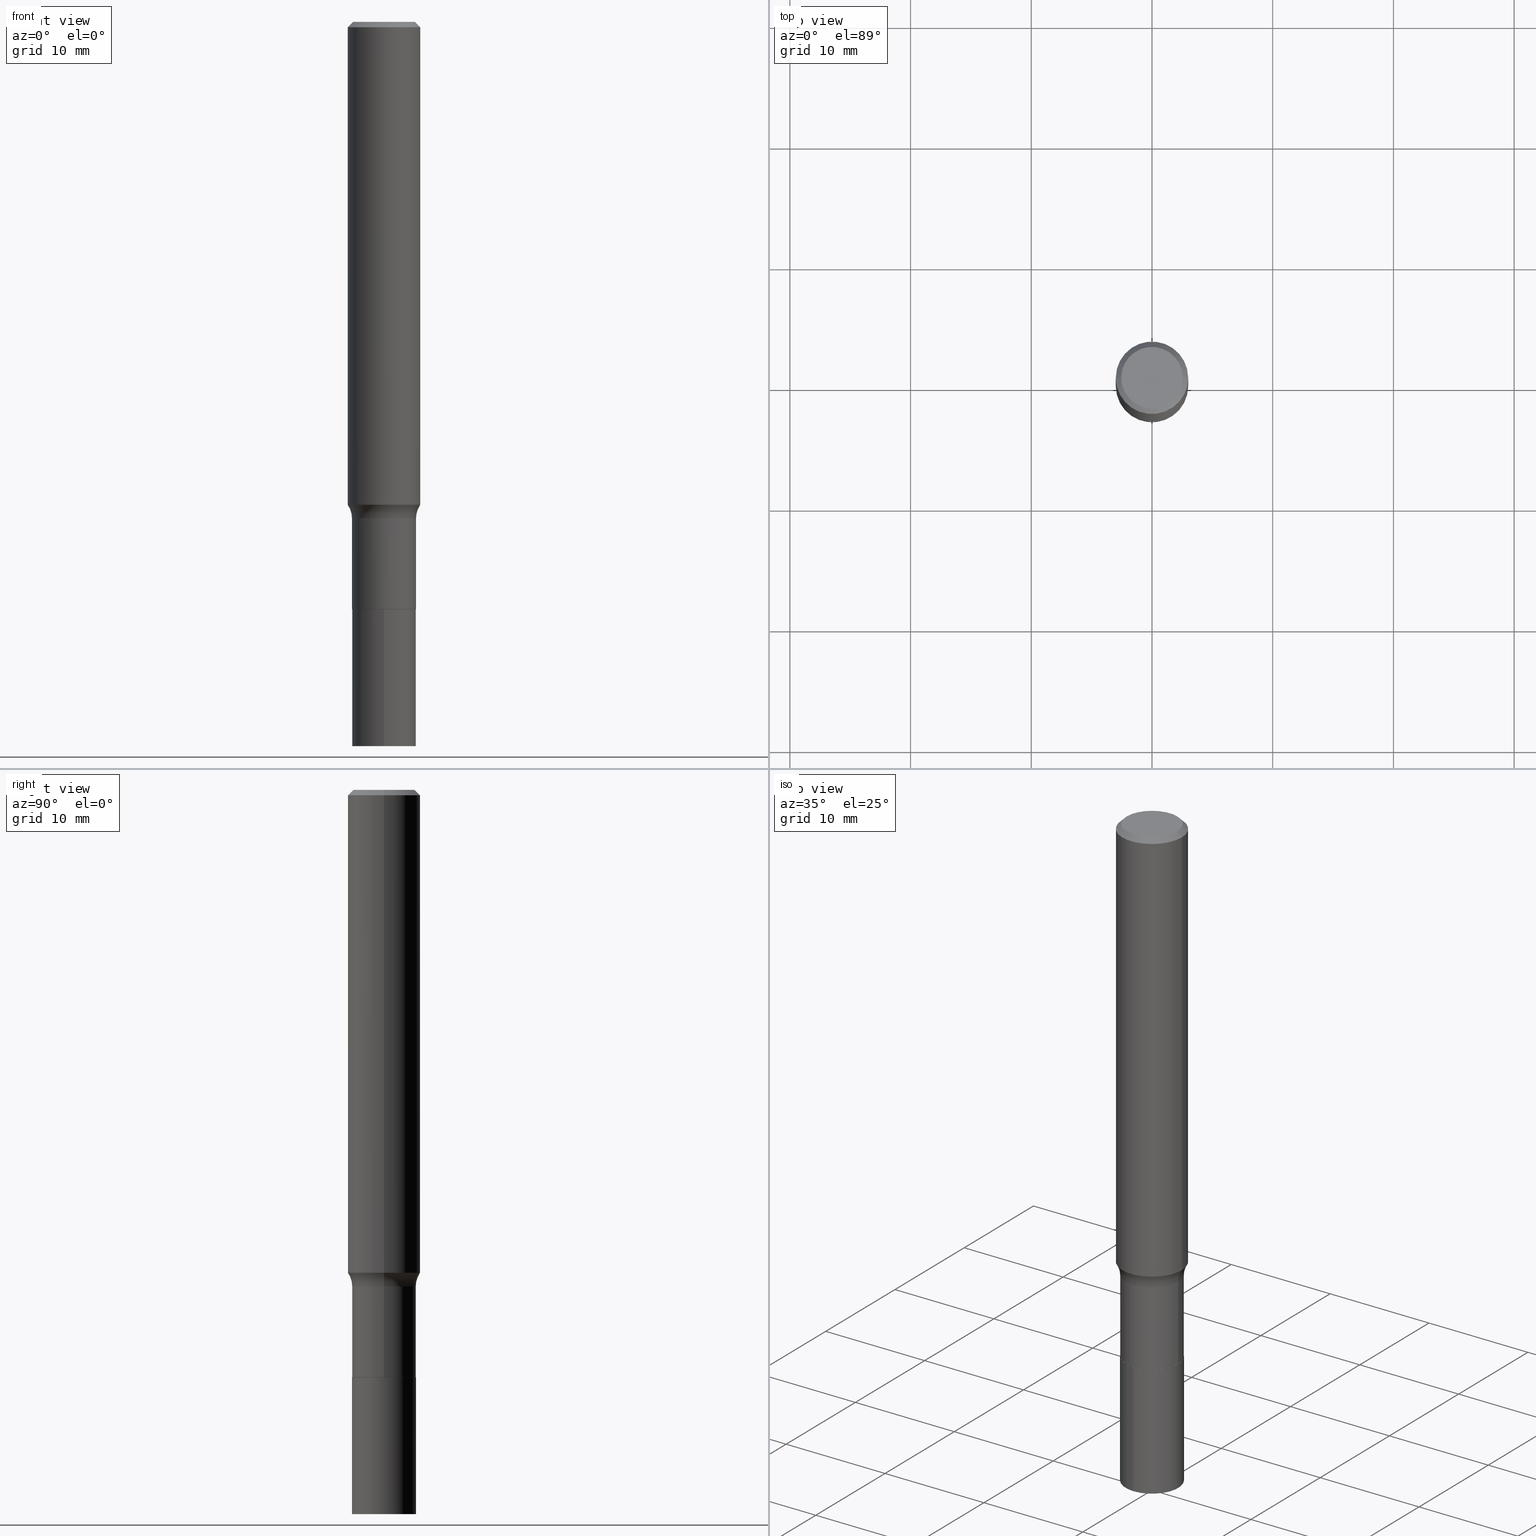
[diagram: canonical four-view strip — front | top / right | iso, engineering-drawing reading convention]
A machine part, canonical four-view strip (front | top / right | iso — engineering-drawing reading convention). The complete STEP part file that produces these views, byte-faithful:
ISO-10303-21;
HEADER;
FILE_DESCRIPTION (( 'STEP AP203' ),
    '1' );
FILE_NAME ('67098.STEP',
    '2024-04-19T15:50:59',
    ( '' ),
    ( '' ),
    'SwSTEP 2.0',
    'SolidWorks 2023',
    '' );
FILE_SCHEMA (( 'CONFIG_CONTROL_DESIGN' ));
ENDSEC;

DATA;
#1 = DIRECTION ( 'NONE',  ( -2.445468806185136877E-29, 3.491481338843145188E-15, 1.000000000000000000 ) ) ;
#2 = DIRECTION ( 'NONE',  ( -2.480896975213797344E-29, 3.440746184347948526E-15, 1.000000000000000000 ) ) ;
#3 = AXIS2_PLACEMENT_3D ( 'NONE', #84, #149, #396 ) ;
#4 = VECTOR ( 'NONE', #345, 39.37007874015748143 ) ;
#5 = EDGE_CURVE ( 'NONE', #106, #204, #9, .T. ) ;
#6 = DIRECTION ( 'NONE',  ( -0.7071067811866199593, 7.493145998870616062E-15, 0.7071067811864750752 ) ) ;
#7 = DIRECTION ( 'NONE',  ( -2.438088387897960049E-29, 3.491481338843145188E-15, 1.000000000000000000 ) ) ;
#8 = LINE ( 'NONE', #253, #95 ) ;
#9 = CIRCLE ( 'NONE', #270, 0.1043499999999999844 ) ;
#10 = VECTOR ( 'NONE', #283, 39.37007874015748143 ) ;
#11 = DIRECTION ( 'NONE',  ( -2.445468806185136597E-29, 3.491481338843145583E-15, 1.000000000000000000 ) ) ;
#12 = APPROVAL_DATE_TIME ( #221, #429 ) ;
#13 = ADVANCED_FACE ( 'NONE', ( #26 ), #230, .T. ) ;
#14 = CYLINDRICAL_SURFACE ( 'NONE', #45, 0.1043499999999999706 ) ;
#15 = ORIENTED_EDGE ( 'NONE', *, *, #136, .T. ) ;
#16 = CARTESIAN_POINT ( 'NONE',  ( -0.1038499999999999840, -5.949828683230260894E-15, -1.916200000000000125 ) ) ;
#17 = PERSON_AND_ORGANIZATION ( #305, #317 ) ;
#18 = ORIENTED_EDGE ( 'NONE', *, *, #57, .T. ) ;
#19 = DIRECTION ( 'NONE',  ( -1.000000000000000000, 6.982962677686265922E-15, -4.876176775795935793E-29 ) ) ;
#20 = TOROIDAL_SURFACE ( 'NONE', #131, 0.1843499999999999306, 0.08000000000000000167 ) ;
#21 = ORIENTED_EDGE ( 'NONE', *, *, #74, .T. ) ;
#22 = CARTESIAN_POINT ( 'NONE',  ( 4.686007326411958791E-29, -6.690376541491236123E-15, -1.916200000000000125 ) ) ;
#23 = PERSON_AND_ORGANIZATION ( #305, #317 ) ;
#24 = CC_DESIGN_PERSON_AND_ORGANIZATION_ASSIGNMENT ( #23, #258, ( #67 ) ) ;
#25 = DIRECTION ( 'NONE',  ( 1.000000000000000000, -6.982962677686259611E-15, 0.000000000000000000 ) ) ;
#26 = FACE_OUTER_BOUND ( 'NONE', #161, .T. ) ;
#27 = DIRECTION ( 'NONE',  ( -2.480896975213796784E-29, 3.440746184347948920E-15, 1.000000000000000000 ) ) ;
#28 = VECTOR ( 'NONE', #1, 39.37007874015748143 ) ;
#29 = ORIENTED_EDGE ( 'NONE', *, *, #70, .T. ) ;
#30 = EDGE_CURVE ( 'NONE', #204, #106, #82, .T. ) ;
#31 = CARTESIAN_POINT ( 'NONE',  ( -0.1043499999999999567, -5.430789366041250005E-15, -1.619900000000000340 ) ) ;
#32 = ORIENTED_EDGE ( 'NONE', *, *, #185, .F. ) ;
#33 =( NAMED_UNIT ( * ) SI_UNIT ( $, .STERADIAN. ) SOLID_ANGLE_UNIT ( ) );
#34 = DIRECTION ( 'NONE',  ( -2.445468806185136597E-29, 3.491481338843145583E-15, 1.000000000000000000 ) ) ;
#35 = ORIENTED_EDGE ( 'NONE', *, *, #50, .F. ) ;
#36 = CLOSED_SHELL ( 'NONE', ( #64, #398, #426, #379 ) ) ;
#37 = AXIS2_PLACEMENT_3D ( 'NONE', #145, #48, #394 ) ;
#38 = LOCAL_TIME ( 11, 50, 59.00000000000000000, #466 ) ;
#39 = DATE_TIME_ROLE ( 'creation_date' ) ;
#40 = CARTESIAN_POINT ( 'NONE',  ( -0.1180999999999999966, -1.941415052491705920E-15, -0.01771500000000010913 ) ) ;
#41 = ADVANCED_FACE ( 'NONE', ( #464 ), #271, .T. ) ;
#42 = FACE_OUTER_BOUND ( 'NONE', #302, .T. ) ;
#43 = EDGE_CURVE ( 'NONE', #259, #241, #143, .T. ) ;
#44 = CARTESIAN_POINT ( 'NONE',  ( 0.1043499999999999567, -6.384522776208574498E-15, -1.619900000000000340 ) ) ;
#45 = AXIS2_PLACEMENT_3D ( 'NONE', #93, #367, #225 ) ;
#46 = ADVANCED_FACE ( 'NONE', ( #392 ), #75, .T. ) ;
#47 = FACE_OUTER_BOUND ( 'NONE', #193, .T. ) ;
#48 = DIRECTION ( 'NONE',  ( -2.445468806185136597E-29, 3.491481338843145583E-15, 1.000000000000000000 ) ) ;
#49 = DIRECTION ( 'NONE',  ( -2.445468806185136597E-29, 3.491481338843145583E-15, 1.000000000000000000 ) ) ;
#50 = EDGE_CURVE ( 'NONE', #158, #416, #341, .T. ) ;
#51 = CONICAL_SURFACE ( 'NONE', #450, 0.1038499999999999840, 0.7853981633975507526 ) ;
#52 = DIRECTION ( 'NONE',  ( -2.445468806185136597E-29, 3.491481338843145583E-15, 1.000000000000000000 ) ) ;
#53 = EDGE_LOOP ( 'NONE', ( #462, #29, #449, #274 ) ) ;
#54 = CARTESIAN_POINT ( 'NONE',  ( 5.792487377357313463E-29, -8.224949339710422363E-15, -2.362200000000000522 ) ) ;
#55 = ORIENTED_EDGE ( 'NONE', *, *, #460, .F. ) ;
#56 = CARTESIAN_POINT ( 'NONE',  ( 4.686007326411958791E-29, -6.690376541491236123E-15, -1.916200000000000125 ) ) ;
#57 = EDGE_CURVE ( 'NONE', #461, #66, #181, .T. ) ;
#58 = VECTOR ( 'NONE', #322, 39.37007874015748143 ) ;
#59 = CARTESIAN_POINT ( 'NONE',  ( -7.286721554165148820E-16, -0.1043500000000066874, -1.916199999999999903 ) ) ;
#60 = EDGE_LOOP ( 'NONE', ( #135, #410, #280, #384 ) ) ;
#61 = CARTESIAN_POINT ( 'NONE',  ( 0.1003849999999999465, -7.803837484803597373E-16, -3.278471329826883745E-17 ) ) ;
#62 = VERTEX_POINT ( 'NONE', #327 ) ;
#63 = ORIENTED_EDGE ( 'NONE', *, *, #440, .F. ) ;
#64 = ADVANCED_FACE ( 'NONE', ( #209 ), #360, .T. ) ;
#65 = APPLICATION_PROTOCOL_DEFINITION ( 'international standard', 'config_control_design', 1994, #172 ) ;
#66 = VERTEX_POINT ( 'NONE', #44 ) ;
#67 = PRODUCT_DEFINITION_FORMATION_WITH_SPECIFIED_SOURCE ( 'ANY', '', #337, .NOT_KNOWN. ) ;
#68 = DIRECTION ( 'NONE',  ( 1.000000000000000000, -6.982962677686265922E-15, 4.883557194083112901E-29 ) ) ;
#69 = CARTESIAN_POINT ( 'NONE',  ( 4.684784592008867110E-29, -6.688630800821815408E-15, -1.915700000000000180 ) ) ;
#70 = EDGE_CURVE ( 'NONE', #226, #406, #214, .T. ) ;
#71 = DIRECTION ( 'NONE',  ( 1.000000000000000000, -6.982962677686266711E-15, 0.000000000000000000 ) ) ;
#72 = EDGE_LOOP ( 'NONE', ( #32, #338, #104, #239 ) ) ;
#73 = PERSON_AND_ORGANIZATION_ROLE ( 'creator' ) ;
#74 = EDGE_CURVE ( 'NONE', #416, #158, #151, .T. ) ;
#75 = CYLINDRICAL_SURFACE ( 'NONE', #111, 0.1043499999999999706 ) ;
#76 = CC_DESIGN_SECURITY_CLASSIFICATION ( #237, ( #67 ) ) ;
#77 = DIRECTION ( 'NONE',  ( -2.480896975213797344E-29, 3.440746184347948526E-15, 1.000000000000000000 ) ) ;
#78 = EDGE_CURVE ( 'NONE', #109, #62, #362, .T. ) ;
#79 = DIRECTION ( 'NONE',  ( 1.000000000000000000, -6.982962677686268288E-15, 0.000000000000000000 ) ) ;
#80 = CC_DESIGN_PERSON_AND_ORGANIZATION_ASSIGNMENT ( #254, #331, ( #237 ) ) ;
#81 = DIRECTION ( 'NONE',  ( -6.982962677686265922E-15, -1.000000000000000000, 2.617966452960483025E-15 ) ) ;
#82 = CIRCLE ( 'NONE', #377, 0.1043499999999999844 ) ;
#83 = CC_DESIGN_APPROVAL ( #422, ( #237 ) ) ;
#84 = CARTESIAN_POINT ( 'NONE',  ( 4.332147990156996744E-31, -6.185159191760670395E-17, -0.01771500000000010913 ) ) ;
#85 = DIRECTION ( 'NONE',  ( 1.000000000000000000, -6.982962677686268288E-15, 0.000000000000000000 ) ) ;
#86 = COORDINATED_UNIVERSAL_TIME_OFFSET ( 5, 0, .BEHIND. ) ;
#87 = CARTESIAN_POINT ( 'NONE',  ( 4.686007326411958791E-29, -6.690376541491236123E-15, -1.916200000000000125 ) ) ;
#88 = CONICAL_SURFACE ( 'NONE', #357, 0.1180999999999999966, 0.7853981633974476129 ) ;
#89 = DIRECTION ( 'NONE',  ( -2.445468806185136877E-29, 3.491481338843145188E-15, 1.000000000000000000 ) ) ;
#90 = DIRECTION ( 'NONE',  ( -6.982962677686265922E-15, -1.000000000000000000, 2.617966452960482631E-15 ) ) ;
#91 = ORIENTED_EDGE ( 'NONE', *, *, #395, .F. ) ;
#92 = ADVANCED_FACE ( 'NONE', ( #363 ), #51, .T. ) ;
#93 = CARTESIAN_POINT ( 'NONE',  ( 0.000000000000000000, 0.000000000000000000, 0.000000000000000000 ) ) ;
#94 = ORIENTED_EDGE ( 'NONE', *, *, #210, .T. ) ;
#95 = VECTOR ( 'NONE', #6, 39.37007874015748143 ) ;
#96 = DIRECTION ( 'NONE',  ( -6.982962677686266711E-15, -1.000000000000000000, 3.491481338843145583E-15 ) ) ;
#97 = CC_DESIGN_APPROVAL ( #284, ( #368 ) ) ;
#98 = PERSON_AND_ORGANIZATION ( #305, #317 ) ;
#99 = EDGE_CURVE ( 'NONE', #318, #461, #224, .T. ) ;
#100 = ORIENTED_EDGE ( 'NONE', *, *, #374, .F. ) ;
#101 = MECHANICAL_CONTEXT ( 'NONE', #417, 'mechanical' ) ;
#102 = ORIENTED_EDGE ( 'NONE', *, *, #78, .T. ) ;
#103 = AXIS2_PLACEMENT_3D ( 'NONE', #289, #77, #211 ) ;
#104 = ORIENTED_EDGE ( 'NONE', *, *, #213, .T. ) ;
#105 = CARTESIAN_POINT ( 'NONE',  ( 4.686007326411958791E-29, -6.690376541491236123E-15, -1.916200000000000125 ) ) ;
#106 = VERTEX_POINT ( 'NONE', #444 ) ;
#107 = EDGE_CURVE ( 'NONE', #259, #226, #385, .T. ) ;
#108 = CALENDAR_DATE ( 2024, 19, 4 ) ;
#109 = VERTEX_POINT ( 'NONE', #40 ) ;
#110 = DIRECTION ( 'NONE',  ( 1.000000000000000000, -6.982962677686268288E-15, 0.000000000000000000 ) ) ;
#111 = AXIS2_PLACEMENT_3D ( 'NONE', #165, #219, #183 ) ;
#112 = AXIS2_PLACEMENT_3D ( 'NONE', #87, #375, #162 ) ;
#113 = CARTESIAN_POINT ( 'NONE',  ( 0.1180999999999999966, -8.720764054544245267E-16, -0.01771500000000010913 ) ) ;
#114 = ADVANCED_FACE ( 'NONE', ( #42 ), #179, .F. ) ;
#115 = LINE ( 'NONE', #397, #28 ) ;
#116 = CARTESIAN_POINT ( 'NONE',  ( -0.1843499999999999306, -4.345965087418268874E-15, -1.619900000000000340 ) ) ;
#117 = DIRECTION ( 'NONE',  ( -1.000000000000000000, 7.105427357600997914E-15, 0.000000000000000000 ) ) ;
#118 = CC_DESIGN_DATE_AND_TIME_ASSIGNMENT ( #207, #39, ( #368 ) ) ;
#119 = CARTESIAN_POINT ( 'NONE',  ( 4.332147990156996744E-31, -6.185159191760670395E-17, -0.01771500000000010913 ) ) ;
#120 = DATE_TIME_ROLE ( 'classification_date' ) ;
#121 = ORIENTED_EDGE ( 'NONE', *, *, #50, .T. ) ;
#122 = PLANE ( 'NONE',  #140 ) ;
#123 = AXIS2_PLACEMENT_3D ( 'NONE', #361, #184, #148 ) ;
#124 = AXIS2_PLACEMENT_3D ( 'NONE', #105, #133, #279 ) ;
#125 = DIRECTION ( 'NONE',  ( 1.000000000000000000, -6.982962677686268288E-15, 0.000000000000000000 ) ) ;
#126 = FACE_OUTER_BOUND ( 'NONE', #127, .T. ) ;
#127 = EDGE_LOOP ( 'NONE', ( #206, #419 ) ) ;
#128 = CARTESIAN_POINT ( 'NONE',  ( 4.686007326411958791E-29, -6.690376541491236123E-15, -1.916200000000000125 ) ) ;
#129 = ORIENTED_EDGE ( 'NONE', *, *, #213, .F. ) ;
#130 =( NAMED_UNIT ( * ) PLANE_ANGLE_UNIT ( ) SI_UNIT ( $, .RADIAN. ) );
#131 = AXIS2_PLACEMENT_3D ( 'NONE', #174, #352, #68 ) ;
#132 = EDGE_LOOP ( 'NONE', ( #382, #35, #94, #102 ) ) ;
#133 = DIRECTION ( 'NONE',  ( -2.480896975213797344E-29, 3.440746184347948526E-15, 1.000000000000000000 ) ) ;
#134 = ORIENTED_EDGE ( 'NONE', *, *, #309, .F. ) ;
#135 = ORIENTED_EDGE ( 'NONE', *, *, #99, .F. ) ;
#136 = EDGE_CURVE ( 'NONE', #416, #62, #288, .T. ) ;
#137 = FACE_OUTER_BOUND ( 'NONE', #351, .T. ) ;
#138 = AXIS2_PLACEMENT_3D ( 'NONE', #439, #7, #178 ) ;
#139 = ORIENTED_EDGE ( 'NONE', *, *, #185, .T. ) ;
#140 = AXIS2_PLACEMENT_3D ( 'NONE', #418, #27, #197 ) ;
#141 = EDGE_CURVE ( 'NONE', #344, #204, #8, .T. ) ;
#142 = DATE_AND_TIME ( #314, #38 ) ;
#143 = LINE ( 'NONE', #243, #10 ) ;
#144 = CARTESIAN_POINT ( 'NONE',  ( 3.851751593051242505E-29, -5.499280454931165191E-15, -1.575056522213369670 ) ) ;
#145 = CARTESIAN_POINT ( 'NONE',  ( 3.961414919139303534E-29, -5.655850620792012876E-15, -1.619900000000000340 ) ) ;
#146 = AXIS2_PLACEMENT_3D ( 'NONE', #467, #34, #171 ) ;
#147 = DIRECTION ( 'NONE',  ( -2.445468806185136597E-29, 3.491481338843145583E-15, 1.000000000000000000 ) ) ;
#148 = DIRECTION ( 'NONE',  ( 1.000000000000000000, -6.982962677686266711E-15, 4.875668750515089058E-29 ) ) ;
#149 = DIRECTION ( 'NONE',  ( -2.445468806185136597E-29, 3.491481338843145583E-15, 1.000000000000000000 ) ) ;
#150 = CLOSED_SHELL ( 'NONE', ( #92, #13, #189, #455, #46, #218, #287, #263, #365, #248, #114, #41 ) ) ;
#151 = CIRCLE ( 'NONE', #123, 0.1003849999999999465 ) ;
#152 = CIRCLE ( 'NONE', #400, 0.1180999999999999966 ) ;
#153 = FACE_OUTER_BOUND ( 'NONE', #72, .T. ) ;
#154 = CARTESIAN_POINT ( 'NONE',  ( 0.1181000000000002326, -6.323968347165915031E-15, -1.575056522213369670 ) ) ;
#155 = ORIENTED_EDGE ( 'NONE', *, *, #30, .F. ) ;
#156 = CC_DESIGN_PERSON_AND_ORGANIZATION_ASSIGNMENT ( #98, #169, ( #337 ) ) ;
#157 = CARTESIAN_POINT ( 'NONE',  ( 0.1038499999999999840, -7.415557215568955527E-15, -1.916200000000000125 ) ) ;
#158 = VERTEX_POINT ( 'NONE', #180 ) ;
#159 = CIRCLE ( 'NONE', #251, 0.1043499999999999844 ) ;
#160 = CARTESIAN_POINT ( 'NONE',  ( 3.851751593051242505E-29, -5.499280454931165191E-15, -1.575056522213369670 ) ) ;
#161 = EDGE_LOOP ( 'NONE', ( #276, #15, #262, #298 ) ) ;
#162 = DIRECTION ( 'NONE',  ( 6.982962677686265922E-15, 1.000000000000000000, -3.440746184347948920E-15 ) ) ;
#163 = PERSON_AND_ORGANIZATION ( #305, #317 ) ;
#164 = DIRECTION ( 'NONE',  ( -2.445468806185136877E-29, 3.491481338843145188E-15, 1.000000000000000000 ) ) ;
#165 = CARTESIAN_POINT ( 'NONE',  ( 0.000000000000000000, 0.000000000000000000, 0.000000000000000000 ) ) ;
#166 =( CONVERSION_BASED_UNIT ( 'INCH', #354 ) LENGTH_UNIT ( ) NAMED_UNIT ( #319 ) );
#167 = DIRECTION ( 'NONE',  ( 1.000000000000000000, -6.982962677686263555E-15, 0.000000000000000000 ) ) ;
#168 = EDGE_CURVE ( 'NONE', #66, #461, #330, .T. ) ;
#169 = PERSON_AND_ORGANIZATION_ROLE ( 'design_owner' ) ;
#170 = DIRECTION ( 'NONE',  ( 1.000000000000000000, -6.982962677686263555E-15, 0.000000000000000000 ) ) ;
#171 = DIRECTION ( 'NONE',  ( 1.000000000000000000, -6.982962677686268288E-15, 0.000000000000000000 ) ) ;
#172 = APPLICATION_CONTEXT ( 'configuration controlled 3d designs of mechanical parts and assemblies' ) ;
#173 = DESIGN_CONTEXT ( 'detailed design', #172, 'design' ) ;
#174 = CARTESIAN_POINT ( 'NONE',  ( 3.961414919139303534E-29, -5.655850620792012876E-15, -1.619900000000000340 ) ) ;
#175 = CIRCLE ( 'NONE', #399, 0.1181000000000002048 ) ;
#176 = ORIENTED_EDGE ( 'NONE', *, *, #141, .T. ) ;
#177 = APPROVAL_DATE_TIME ( #142, #284 ) ;
#178 = DIRECTION ( 'NONE',  ( 1.000000000000000000, -6.982962677686265922E-15, 4.876176775795935793E-29 ) ) ;
#179 = PLANE ( 'NONE',  #138 ) ;
#180 = CARTESIAN_POINT ( 'NONE',  ( -0.1003849999999999465, 7.319105043583383731E-16, -3.278471329827902485E-17 ) ) ;
#181 = CIRCLE ( 'NONE', #37, 0.1043499999999999567 ) ;
#182 = AXIS2_PLACEMENT_3D ( 'NONE', #56, #297, #188 ) ;
#183 = DIRECTION ( 'NONE',  ( 1.000000000000000000, -6.982962677686266711E-15, 4.876176775795936353E-29 ) ) ;
#184 = DIRECTION ( 'NONE',  ( -2.445468806185136597E-29, 3.491481338843145583E-15, 1.000000000000000000 ) ) ;
#185 = EDGE_CURVE ( 'NONE', #204, #461, #115, .T. ) ;
#186 = CARTESIAN_POINT ( 'NONE',  ( 0.000000000000000000, 0.000000000000000000, 0.000000000000000000 ) ) ;
#187 = AXIS2_PLACEMENT_3D ( 'NONE', #290, #250, #401 ) ;
#188 = DIRECTION ( 'NONE',  ( -6.982962677686265922E-15, -1.000000000000000000, 2.617966452960482631E-15 ) ) ;
#189 = ADVANCED_FACE ( 'NONE', ( #47 ), #292, .T. ) ;
#190 = DIRECTION ( 'NONE',  ( 0.7071067811866199593, -2.468850131083015945E-15, 0.7071067811864750752 ) ) ;
#191 = ORIENTED_EDGE ( 'NONE', *, *, #78, .F. ) ;
#192 = LINE ( 'NONE', #222, #407 ) ;
#193 = EDGE_LOOP ( 'NONE', ( #234, #347, #355, #55 ) ) ;
#194 = FACE_OUTER_BOUND ( 'NONE', #425, .T. ) ;
#195 = EDGE_CURVE ( 'NONE', #380, #318, #175, .T. ) ;
#196 = EDGE_LOOP ( 'NONE', ( #423, #176, #433, #340 ) ) ;
#197 = DIRECTION ( 'NONE',  ( -6.982962677686265922E-15, -1.000000000000000000, 3.440746184347948920E-15 ) ) ;
#198 = ORIENTED_EDGE ( 'NONE', *, *, #107, .F. ) ;
#199 = EDGE_CURVE ( 'NONE', #241, #406, #159, .T. ) ;
#200 = DIRECTION ( 'NONE',  ( -2.445468806185136597E-29, 3.491481338843145583E-15, 1.000000000000000000 ) ) ;
#201 = VERTEX_POINT ( 'NONE', #157 ) ;
#202 = CIRCLE ( 'NONE', #182, 0.1043499999999999844 ) ;
#203 = DIRECTION ( 'NONE',  ( 1.000000000000000000, 0.000000000000000000, 0.000000000000000000 ) ) ;
#204 = VERTEX_POINT ( 'NONE', #414 ) ;
#205 = ORIENTED_EDGE ( 'NONE', *, *, #334, .T. ) ;
#206 = ORIENTED_EDGE ( 'NONE', *, *, #199, .T. ) ;
#207 = DATE_AND_TIME ( #108, #260 ) ;
#208 = AXIS2_PLACEMENT_3D ( 'NONE', #160, #11, #125 ) ;
#209 = FACE_OUTER_BOUND ( 'NONE', #53, .T. ) ;
#210 = EDGE_CURVE ( 'NONE', #158, #109, #192, .T. ) ;
#211 = DIRECTION ( 'NONE',  ( -6.982962677686265922E-15, -1.000000000000000000, 2.617966452960483025E-15 ) ) ;
#212 = DIRECTION ( 'NONE',  ( 7.105427357601001859E-15, 1.000000000000000000, -3.491481338843145583E-15 ) ) ;
#213 = EDGE_CURVE ( 'NONE', #106, #66, #329, .T. ) ;
#214 = LINE ( 'NONE', #359, #58 ) ;
#215 = VECTOR ( 'NONE', #89, 39.37007874015748143 ) ;
#216 = APPROVAL_PERSON_ORGANIZATION ( #350, #284, #312 ) ;
#217 = UNCERTAINTY_MEASURE_WITH_UNIT (LENGTH_MEASURE( 1.000000000000000082E-05 ), #166, 'distance_accuracy_value', 'NONE');
#218 = ADVANCED_FACE ( 'NONE', ( #153 ), #14, .T. ) ;
#219 = DIRECTION ( 'NONE',  ( -2.445468806185136597E-29, 3.491481338843145583E-15, 1.000000000000000000 ) ) ;
#220 = CARTESIAN_POINT ( 'NONE',  ( -0.1181000000000002326, -4.660129483998485416E-15, -1.575056522213369670 ) ) ;
#221 = DATE_AND_TIME ( #391, #294 ) ;
#222 = CARTESIAN_POINT ( 'NONE',  ( -0.1180999999999999966, 7.628363003171413738E-16, -0.01771500000000010913 ) ) ;
#223 = APPROVAL_DATE_TIME ( #304, #422 ) ;
#224 = CIRCLE ( 'NONE', #348, 0.08000000000000000167 ) ;
#225 = DIRECTION ( 'NONE',  ( 1.000000000000000000, -6.982962677686266711E-15, 4.876176775795936353E-29 ) ) ;
#226 = VERTEX_POINT ( 'NONE', #335 ) ;
#227 = DIRECTION ( 'NONE',  ( -1.000000000000000000, 6.982962677686266711E-15, 0.000000000000000000 ) ) ;
#228 = DIRECTION ( 'NONE',  ( 1.000000000000000000, -6.982962677686265922E-15, 4.883557194083112901E-29 ) ) ;
#229 = ORIENTED_EDGE ( 'NONE', *, *, #374, .T. ) ;
#230 = CONICAL_SURFACE ( 'NONE', #324, 0.1180999999999999966, 0.7853981633974476129 ) ;
#231 = ORIENTED_EDGE ( 'NONE', *, *, #43, .T. ) ;
#232 = APPROVAL_STATUS ( 'not_yet_approved' ) ;
#233 = ORIENTED_EDGE ( 'NONE', *, *, #99, .T. ) ;
#234 = ORIENTED_EDGE ( 'NONE', *, *, #195, .T. ) ;
#235 = CC_DESIGN_PERSON_AND_ORGANIZATION_ASSIGNMENT ( #163, #265, ( #67 ) ) ;
#236 = AXIS2_PLACEMENT_3D ( 'NONE', #321, #147, #403 ) ;
#237 = SECURITY_CLASSIFICATION ( '', '', #409 ) ;
#238 = CYLINDRICAL_SURFACE ( 'NONE', #124, 0.1043499999999999706 ) ;
#239 = ORIENTED_EDGE ( 'NONE', *, *, #57, .F. ) ;
#240 = LINE ( 'NONE', #378, #436 ) ;
#241 = VERTEX_POINT ( 'NONE', #59 ) ;
#242 = PERSON_AND_ORGANIZATION ( #305, #317 ) ;
#243 = CARTESIAN_POINT ( 'NONE',  ( -7.286721554165147834E-16, -0.1043500000000066735, -1.916199999999999903 ) ) ;
#244 = CIRCLE ( 'NONE', #308, 0.1043499999999999706 ) ;
#245 = CARTESIAN_POINT ( 'NONE',  ( 4.686007326411958791E-29, -6.690376541491236123E-15, -1.916200000000000125 ) ) ;
#246 = CIRCLE ( 'NONE', #310, 0.08000000000000000167 ) ;
#247 = CARTESIAN_POINT ( 'NONE',  ( 8.017399369065212404E-46, -1.144672146802464325E-31, -3.278471329827401435E-17 ) ) ;
#248 = ADVANCED_FACE ( 'NONE', ( #194 ), #370, .F. ) ;
#249 = DIRECTION ( 'NONE',  ( -2.445468806185136597E-29, 3.491481338843145583E-15, 1.000000000000000000 ) ) ;
#250 = DIRECTION ( 'NONE',  ( -2.445468806185136597E-29, 3.491481338843145583E-15, 1.000000000000000000 ) ) ;
#251 = AXIS2_PLACEMENT_3D ( 'NONE', #245, #2, #90 ) ;
#252 = AXIS2_PLACEMENT_3D ( 'NONE', #128, #268, #85 ) ;
#253 = CARTESIAN_POINT ( 'NONE',  ( -0.1038499999999999840, -5.952477910404372095E-15, -1.916200000000000125 ) ) ;
#254 = PERSON_AND_ORGANIZATION ( #305, #317 ) ;
#255 = CYLINDRICAL_SURFACE ( 'NONE', #356, 0.1181000000000001077 ) ;
#256 = ORIENTED_EDGE ( 'NONE', *, *, #460, .T. ) ;
#257 = PLANE ( 'NONE',  #112 ) ;
#258 = PERSON_AND_ORGANIZATION_ROLE ( 'design_supplier' ) ;
#259 = VERTEX_POINT ( 'NONE', #372 ) ;
#260 = LOCAL_TIME ( 11, 50, 59.00000000000000000, #432 ) ;
#261 = FACE_OUTER_BOUND ( 'NONE', #132, .T. ) ;
#262 = ORIENTED_EDGE ( 'NONE', *, *, #402, .T. ) ;
#263 = ADVANCED_FACE ( 'NONE', ( #303 ), #255, .T. ) ;
#264 = CARTESIAN_POINT ( 'NONE',  ( 4.008699684532606202E-46, -5.723360734012321624E-32, -1.639235664913700718E-17 ) ) ;
#265 = PERSON_AND_ORGANIZATION_ROLE ( 'creator' ) ;
#266 = EDGE_LOOP ( 'NONE', ( #198, #431 ) ) ;
#267 = CC_DESIGN_DATE_AND_TIME_ASSIGNMENT ( #404, #120, ( #237 ) ) ;
#268 = DIRECTION ( 'NONE',  ( -2.445468806185136597E-29, 3.491481338843145583E-15, 1.000000000000000000 ) ) ;
#269 = ORIENTED_EDGE ( 'NONE', *, *, #386, .F. ) ;
#270 = AXIS2_PLACEMENT_3D ( 'NONE', #428, #388, #170 ) ;
#271 = CONICAL_SURFACE ( 'NONE', #146, 0.1038499999999999840, 0.7853981633975507526 ) ;
#272 = AXIS2_PLACEMENT_3D ( 'NONE', #273, #383, #203 ) ;
#273 = CARTESIAN_POINT ( 'NONE',  ( 0.000000000000000000, 0.000000000000000000, 0.000000000000000000 ) ) ;
#274 = ORIENTED_EDGE ( 'NONE', *, *, #43, .F. ) ;
#275 = CARTESIAN_POINT ( 'NONE',  ( 7.414513447657221188E-16, 0.1043499999999932953, -1.916200000000000347 ) ) ;
#276 = ORIENTED_EDGE ( 'NONE', *, *, #74, .F. ) ;
#277 = ORIENTED_EDGE ( 'NONE', *, *, #411, .F. ) ;
#278 = CIRCLE ( 'NONE', #252, 0.1038499999999999840 ) ;
#279 = DIRECTION ( 'NONE',  ( -6.982962677686265922E-15, -1.000000000000000000, 2.617966452960483025E-15 ) ) ;
#280 = ORIENTED_EDGE ( 'NONE', *, *, #440, .T. ) ;
#281 = MANIFOLD_SOLID_BREP ( 'Body-Move/Copy2[1]', #36 ) ;
#282 = PERSON_AND_ORGANIZATION ( #305, #317 ) ;
#283 = DIRECTION ( 'NONE',  ( -2.480896975213797344E-29, 3.440746184347948920E-15, 1.000000000000000000 ) ) ;
#284 = APPROVAL ( #232, 'UNSPECIFIED' ) ;
#285 = DIRECTION ( 'NONE',  ( -2.445468806185136597E-29, 3.491481338843145583E-15, 1.000000000000000000 ) ) ;
#286 = CIRCLE ( 'NONE', #325, 0.1038499999999999840 ) ;
#287 = ADVANCED_FACE ( 'NONE', ( #412 ), #300, .F. ) ;
#288 = LINE ( 'NONE', #113, #293 ) ;
#289 = CARTESIAN_POINT ( 'NONE',  ( 5.792487377357313463E-29, -8.224949339710422363E-15, -2.362200000000000522 ) ) ;
#290 = CARTESIAN_POINT ( 'NONE',  ( 0.000000000000000000, 0.000000000000000000, 0.000000000000000000 ) ) ;
#291 = MANIFOLD_SOLID_BREP ( 'Body-Move/Copy2[2]', #150 ) ;
#292 = CYLINDRICAL_SURFACE ( 'NONE', #187, 0.1181000000000001077 ) ;
#293 = VECTOR ( 'NONE', #438, 39.37007874015748854 ) ;
#294 = LOCAL_TIME ( 11, 50, 59.00000000000000000, #468 ) ;
#295 = CARTESIAN_POINT ( 'NONE',  ( 0.1038499999999999840, -7.415557215568955527E-15, -1.916200000000000125 ) ) ;
#296 = ORIENTED_EDGE ( 'NONE', *, *, #5, .T. ) ;
#297 = DIRECTION ( 'NONE',  ( -2.480896975213797344E-29, 3.440746184347948526E-15, 1.000000000000000000 ) ) ;
#298 = ORIENTED_EDGE ( 'NONE', *, *, #210, .F. ) ;
#299 = DIRECTION ( 'NONE',  ( 1.000000000000000000, -6.982962677686266711E-15, 4.876176775795935793E-29 ) ) ;
#300 = TOROIDAL_SURFACE ( 'NONE', #430, 0.1843499999999999306, 0.08000000000000000167 ) ;
#301 = DIRECTION ( 'NONE',  ( -0.7071067811865469066, 2.468850131082251144E-15, -0.7071067811865479058 ) ) ;
#302 = EDGE_LOOP ( 'NONE', ( #269, #100 ) ) ;
#303 = FACE_OUTER_BOUND ( 'NONE', #315, .T. ) ;
#304 = DATE_AND_TIME ( #415, #349 ) ;
#305 = PERSON ( 'UNSPECIFIED', 'UNSPECIFIED', 'UNSPECIFIED', ('UNSPECIFIED'), ('UNSPECIFIED'), ('UNSPECIFIED') ) ;
#306 = LINE ( 'NONE', #389, #4 ) ;
#307 = CARTESIAN_POINT ( 'NONE',  ( 4.332147990156996744E-31, -6.185159191760670395E-17, -0.01771500000000010913 ) ) ;
#308 = AXIS2_PLACEMENT_3D ( 'NONE', #54, #453, #376 ) ;
#309 = EDGE_CURVE ( 'NONE', #318, #380, #420, .T. ) ;
#310 = AXIS2_PLACEMENT_3D ( 'NONE', #424, #96, #25 ) ;
#311 = ORIENTED_EDGE ( 'NONE', *, *, #316, .T. ) ;
#312 = APPROVAL_ROLE ( '' ) ;
#313 = DIRECTION ( 'NONE',  ( -1.000000000000000000, 6.982962677686266711E-15, 0.000000000000000000 ) ) ;
#314 = CALENDAR_DATE ( 2024, 19, 4 ) ;
#315 = EDGE_LOOP ( 'NONE', ( #277, #454, #256, #191 ) ) ;
#316 = EDGE_CURVE ( 'NONE', #226, #259, #244, .T. ) ;
#317 = ORGANIZATION ( 'UNSPECIFIED', 'UNSPECIFIED', '' ) ;
#318 = VERTEX_POINT ( 'NONE', #220 ) ;
#319 = DIMENSIONAL_EXPONENTS ( 1.000000000000000000, 0.000000000000000000, 0.000000000000000000, 0.000000000000000000, 0.000000000000000000, 0.000000000000000000, 0.000000000000000000 ) ;
#320 = APPROVAL_ROLE ( '' ) ;
#321 = CARTESIAN_POINT ( 'NONE',  ( 3.961414919139303534E-29, -5.655850620792012876E-15, -1.619900000000000340 ) ) ;
#322 = DIRECTION ( 'NONE',  ( -2.480896975213797344E-29, 3.440746184347948920E-15, 1.000000000000000000 ) ) ;
#323 = PRODUCT_RELATED_PRODUCT_CATEGORY ( 'detail', '', ( #337 ) ) ;
#324 = AXIS2_PLACEMENT_3D ( 'NONE', #307, #390, #313 ) ;
#325 = AXIS2_PLACEMENT_3D ( 'NONE', #22, #49, #405 ) ;
#326 = DIRECTION ( 'NONE',  ( -2.480896975213797344E-29, 3.440746184347948526E-15, 1.000000000000000000 ) ) ;
#327 = CARTESIAN_POINT ( 'NONE',  ( 0.1180999999999999966, -8.865394841523547570E-16, -0.01771500000000010913 ) ) ;
#328 = CARTESIAN_POINT ( 'NONE',  ( 4.686007326411958791E-29, -6.690376541491236123E-15, -1.916200000000000125 ) ) ;
#329 = LINE ( 'NONE', #452, #215 ) ;
#330 = CIRCLE ( 'NONE', #236, 0.1043499999999999567 ) ;
#331 = PERSON_AND_ORGANIZATION_ROLE ( 'classification_officer' ) ;
#332 = FACE_OUTER_BOUND ( 'NONE', #266, .T. ) ;
#333 = EDGE_LOOP ( 'NONE', ( #296, #139, #353, #129 ) ) ;
#334 = EDGE_CURVE ( 'NONE', #201, #106, #342, .T. ) ;
#335 = CARTESIAN_POINT ( 'NONE',  ( 7.414513447657164982E-16, 0.1043499999999917410, -2.362200000000000966 ) ) ;
#336 = COORDINATED_UNIVERSAL_TIME_OFFSET ( 5, 0, .BEHIND. ) ;
#337 = PRODUCT ( '67098', '67098', '', ( #101 ) ) ;
#338 = ORIENTED_EDGE ( 'NONE', *, *, #30, .T. ) ;
#339 = CARTESIAN_POINT ( 'NONE',  ( 3.961414919139303534E-29, -5.655850620792012876E-15, -1.619900000000000340 ) ) ;
#340 = ORIENTED_EDGE ( 'NONE', *, *, #334, .F. ) ;
#341 = CIRCLE ( 'NONE', #393, 0.1003849999999999465 ) ;
#342 = LINE ( 'NONE', #295, #371 ) ;
#343 = APPROVAL_STATUS ( 'not_yet_approved' ) ;
#344 = VERTEX_POINT ( 'NONE', #16 ) ;
#345 = DIRECTION ( 'NONE',  ( -2.445468806185136877E-29, 3.491481338843145188E-15, 1.000000000000000000 ) ) ;
#346 = DIRECTION ( 'NONE',  ( -2.445468806185136597E-29, 3.491481338843145583E-15, 1.000000000000000000 ) ) ;
#347 = ORIENTED_EDGE ( 'NONE', *, *, #411, .T. ) ;
#348 = AXIS2_PLACEMENT_3D ( 'NONE', #116, #212, #117 ) ;
#349 = LOCAL_TIME ( 11, 50, 59.00000000000000000, #86 ) ;
#350 = PERSON_AND_ORGANIZATION ( #305, #317 ) ;
#351 = EDGE_LOOP ( 'NONE', ( #373, #311, #231, #91 ) ) ;
#352 = DIRECTION ( 'NONE',  ( -2.445468806185136597E-29, 3.491481338843145583E-15, 1.000000000000000000 ) ) ;
#353 = ORIENTED_EDGE ( 'NONE', *, *, #168, .F. ) ;
#354 = LENGTH_MEASURE_WITH_UNIT ( LENGTH_MEASURE( 0.02539999999999999897 ), #456 );
#355 = ORIENTED_EDGE ( 'NONE', *, *, #402, .F. ) ;
#356 = AXIS2_PLACEMENT_3D ( 'NONE', #186, #408, #299 ) ;
#357 = AXIS2_PLACEMENT_3D ( 'NONE', #119, #447, #227 ) ;
#358 = APPROVAL_STATUS ( 'not_yet_approved' ) ;
#359 = CARTESIAN_POINT ( 'NONE',  ( 7.414513447657110748E-16, 0.1043499999999932815, -1.916200000000000347 ) ) ;
#360 = CYLINDRICAL_SURFACE ( 'NONE', #435, 0.1043499999999999706 ) ;
#361 = CARTESIAN_POINT ( 'NONE',  ( 8.017399369065212404E-46, -1.144672146802464325E-31, -3.278471329827401435E-17 ) ) ;
#362 = CIRCLE ( 'NONE', #3, 0.1180999999999999966 ) ;
#363 = FACE_OUTER_BOUND ( 'NONE', #196, .T. ) ;
#364 = PRODUCT_DEFINITION_SHAPE ( 'NONE', 'NONE',  #368 ) ;
#365 = ADVANCED_FACE ( 'NONE', ( #261 ), #88, .T. ) ;
#366 = DIRECTION ( 'NONE',  ( 1.000000000000000000, -6.982962677686266711E-15, 4.875668750515089058E-29 ) ) ;
#367 = DIRECTION ( 'NONE',  ( -2.445468806185136597E-29, 3.491481338843145583E-15, 1.000000000000000000 ) ) ;
#368 = PRODUCT_DEFINITION ( 'UNKNOWN', '', #67, #173 ) ;
#369 = APPROVAL_ROLE ( '' ) ;
#370 = PLANE ( 'NONE',  #458 ) ;
#371 = VECTOR ( 'NONE', #190, 39.37007874015748143 ) ;
#372 = CARTESIAN_POINT ( 'NONE',  ( -7.286721554165037393E-16, -0.1043500000000082001, -2.362200000000000077 ) ) ;
#373 = ORIENTED_EDGE ( 'NONE', *, *, #70, .F. ) ;
#374 = EDGE_CURVE ( 'NONE', #344, #201, #286, .T. ) ;
#375 = DIRECTION ( 'NONE',  ( 2.480896975213796784E-29, -3.440746184347948920E-15, -1.000000000000000000 ) ) ;
#376 = DIRECTION ( 'NONE',  ( -6.982962677686265922E-15, -1.000000000000000000, 2.617966452960483025E-15 ) ) ;
#377 = AXIS2_PLACEMENT_3D ( 'NONE', #69, #346, #167 ) ;
#378 = CARTESIAN_POINT ( 'NONE',  ( 0.1181000000000001077, -8.246878922347488542E-16, 5.758764772215005345E-30 ) ) ;
#379 = ADVANCED_FACE ( 'NONE', ( #126 ), #257, .F. ) ;
#380 = VERTEX_POINT ( 'NONE', #154 ) ;
#381 = APPLICATION_PROTOCOL_DEFINITION ( 'international standard', 'config_control_design', 1994, #417 ) ;
#382 = ORIENTED_EDGE ( 'NONE', *, *, #136, .F. ) ;
#383 = DIRECTION ( 'NONE',  ( 0.000000000000000000, 0.000000000000000000, 1.000000000000000000 ) ) ;
#384 = ORIENTED_EDGE ( 'NONE', *, *, #168, .T. ) ;
#385 = CIRCLE ( 'NONE', #103, 0.1043499999999999706 ) ;
#386 = EDGE_CURVE ( 'NONE', #201, #344, #278, .T. ) ;
#387 = CARTESIAN_POINT ( 'NONE',  ( 4.332147990156996744E-31, -6.185159191760670395E-17, -0.01771500000000010913 ) ) ;
#388 = DIRECTION ( 'NONE',  ( -2.445468806185136597E-29, 3.491481338843145583E-15, 1.000000000000000000 ) ) ;
#389 = CARTESIAN_POINT ( 'NONE',  ( -0.1181000000000001077, 8.391509709326790846E-16, -5.809262341591049389E-30 ) ) ;
#390 = DIRECTION ( 'NONE',  ( 2.445468806185136597E-29, -3.491481338843145583E-15, -1.000000000000000000 ) ) ;
#391 = CALENDAR_DATE ( 2024, 19, 4 ) ;
#392 = FACE_OUTER_BOUND ( 'NONE', #333, .T. ) ;
#393 = AXIS2_PLACEMENT_3D ( 'NONE', #247, #441, #366 ) ;
#394 = DIRECTION ( 'NONE',  ( 1.000000000000000000, -6.982962677686265922E-15, 0.000000000000000000 ) ) ;
#395 = EDGE_CURVE ( 'NONE', #406, #241, #202, .T. ) ;
#396 = DIRECTION ( 'NONE',  ( 1.000000000000000000, -6.982962677686266711E-15, 0.000000000000000000 ) ) ;
#397 = CARTESIAN_POINT ( 'NONE',  ( -0.1043499999999999706, 7.414513447656643348E-16, -5.132908766680992704E-30 ) ) ;
#398 = ADVANCED_FACE ( 'NONE', ( #332 ), #122, .F. ) ;
#399 = AXIS2_PLACEMENT_3D ( 'NONE', #144, #285, #110 ) ;
#400 = AXIS2_PLACEMENT_3D ( 'NONE', #387, #200, #71 ) ;
#401 = DIRECTION ( 'NONE',  ( 1.000000000000000000, -6.982962677686266711E-15, 4.876176775795935793E-29 ) ) ;
#402 = EDGE_CURVE ( 'NONE', #62, #109, #152, .T. ) ;
#403 = DIRECTION ( 'NONE',  ( 1.000000000000000000, -6.982962677686265922E-15, 0.000000000000000000 ) ) ;
#404 = DATE_AND_TIME ( #446, #443 ) ;
#405 = DIRECTION ( 'NONE',  ( 1.000000000000000000, -6.982962677686268288E-15, 0.000000000000000000 ) ) ;
#406 = VERTEX_POINT ( 'NONE', #275 ) ;
#407 = VECTOR ( 'NONE', #301, 39.37007874015748854 ) ;
#408 = DIRECTION ( 'NONE',  ( -2.445468806185136597E-29, 3.491481338843145583E-15, 1.000000000000000000 ) ) ;
#409 = SECURITY_CLASSIFICATION_LEVEL ( 'unclassified' ) ;
#410 = ORIENTED_EDGE ( 'NONE', *, *, #195, .F. ) ;
#411 = EDGE_CURVE ( 'NONE', #318, #109, #306, .T. ) ;
#412 = FACE_OUTER_BOUND ( 'NONE', #60, .T. ) ;
#413 = EDGE_LOOP ( 'NONE', ( #451, #229, #205, #155 ) ) ;
#414 = CARTESIAN_POINT ( 'NONE',  ( -0.1043499999999999844, -5.430789366041250005E-15, -1.915700000000000180 ) ) ;
#415 = CALENDAR_DATE ( 2024, 19, 4 ) ;
#416 = VERTEX_POINT ( 'NONE', #61 ) ;
#417 = APPLICATION_CONTEXT ( 'configuration controlled 3d designs of mechanical parts and assemblies' ) ;
#418 = CARTESIAN_POINT ( 'NONE',  ( 1.458310318663360235E-29, -1.443173757379853500E-14, -2.362200000000000077 ) ) ;
#419 = ORIENTED_EDGE ( 'NONE', *, *, #395, .T. ) ;
#420 = CIRCLE ( 'NONE', #208, 0.1181000000000002048 ) ;
#421 = CC_DESIGN_APPROVAL ( #429, ( #67 ) ) ;
#422 = APPROVAL ( #343, 'UNSPECIFIED' ) ;
#423 = ORIENTED_EDGE ( 'NONE', *, *, #386, .T. ) ;
#424 = CARTESIAN_POINT ( 'NONE',  ( 0.1843499999999999306, -6.943159790423476151E-15, -1.619900000000000340 ) ) ;
#425 = EDGE_LOOP ( 'NONE', ( #121, #21 ) ) ;
#426 = ADVANCED_FACE ( 'NONE', ( #137 ), #238, .T. ) ;
#427 = FACE_OUTER_BOUND ( 'NONE', #457, .T. ) ;
#428 = CARTESIAN_POINT ( 'NONE',  ( 4.684784592008867110E-29, -6.688630800821815408E-15, -1.915700000000000180 ) ) ;
#429 = APPROVAL ( #358, 'UNSPECIFIED' ) ;
#430 = AXIS2_PLACEMENT_3D ( 'NONE', #339, #52, #228 ) ;
#431 = ORIENTED_EDGE ( 'NONE', *, *, #316, .F. ) ;
#432 = COORDINATED_UNIVERSAL_TIME_OFFSET ( 5, 0, .BEHIND. ) ;
#433 = ORIENTED_EDGE ( 'NONE', *, *, #5, .F. ) ;
#434 = CARTESIAN_POINT ( 'NONE',  ( 4.686007326411958791E-29, -6.690376541491236123E-15, -1.916200000000000125 ) ) ;
#435 = AXIS2_PLACEMENT_3D ( 'NONE', #434, #326, #81 ) ;
#436 = VECTOR ( 'NONE', #164, 39.37007874015748143 ) ;
#437 = APPROVAL_PERSON_ORGANIZATION ( #17, #422, #369 ) ;
#438 = DIRECTION ( 'NONE',  ( 0.7071067811865469066, -7.319954787623252890E-15, -0.7071067811865479058 ) ) ;
#439 = CARTESIAN_POINT ( 'NONE',  ( 4.686007326411958791E-29, -6.690376541491236123E-15, -1.916200000000000125 ) ) ;
#440 = EDGE_CURVE ( 'NONE', #380, #66, #246, .T. ) ;
#441 = DIRECTION ( 'NONE',  ( -2.445468806185136597E-29, 3.491481338843145583E-15, 1.000000000000000000 ) ) ;
#442 = CC_DESIGN_PERSON_AND_ORGANIZATION_ASSIGNMENT ( #282, #73, ( #368 ) ) ;
#443 = LOCAL_TIME ( 11, 50, 59.00000000000000000, #336 ) ;
#444 = CARTESIAN_POINT ( 'NONE',  ( 0.1043499999999999844, -7.417302956238376242E-15, -1.915700000000000180 ) ) ;
#445 = DIRECTION ( 'NONE',  ( 2.438088387897960049E-29, -3.491481338843145188E-15, -1.000000000000000000 ) ) ;
#446 = CALENDAR_DATE ( 2024, 19, 4 ) ;
#447 = DIRECTION ( 'NONE',  ( 2.445468806185136597E-29, -3.491481338843145583E-15, -1.000000000000000000 ) ) ;
#448 = SHAPE_DEFINITION_REPRESENTATION ( #364, #463 ) ;
#449 = ORIENTED_EDGE ( 'NONE', *, *, #199, .F. ) ;
#450 = AXIS2_PLACEMENT_3D ( 'NONE', #328, #249, #79 ) ;
#451 = ORIENTED_EDGE ( 'NONE', *, *, #141, .F. ) ;
#452 = CARTESIAN_POINT ( 'NONE',  ( 0.1043499999999999706, -7.286721554165617206E-16, 5.088290465543058008E-30 ) ) ;
#453 = DIRECTION ( 'NONE',  ( -2.480896975213797344E-29, 3.440746184347948526E-15, 1.000000000000000000 ) ) ;
#454 = ORIENTED_EDGE ( 'NONE', *, *, #309, .T. ) ;
#455 = ADVANCED_FACE ( 'NONE', ( #427 ), #20, .F. ) ;
#456 =( LENGTH_UNIT ( ) NAMED_UNIT ( * ) SI_UNIT ( $, .METRE. ) );
#457 = EDGE_LOOP ( 'NONE', ( #134, #233, #18, #63 ) ) ;
#458 = AXIS2_PLACEMENT_3D ( 'NONE', #264, #445, #19 ) ;
#459 =( GEOMETRIC_REPRESENTATION_CONTEXT ( 3 ) GLOBAL_UNCERTAINTY_ASSIGNED_CONTEXT ( ( #217 ) ) GLOBAL_UNIT_ASSIGNED_CONTEXT ( ( #166, #130, #33 ) ) REPRESENTATION_CONTEXT ( 'NONE', 'WORKASPACE' ) );
#460 = EDGE_CURVE ( 'NONE', #380, #62, #240, .T. ) ;
#461 = VERTEX_POINT ( 'NONE', #31 ) ;
#462 = ORIENTED_EDGE ( 'NONE', *, *, #107, .T. ) ;
#463 = ADVANCED_BREP_SHAPE_REPRESENTATION ( '67098', ( #281, #291, #272 ), #459 ) ;
#464 = FACE_OUTER_BOUND ( 'NONE', #413, .T. ) ;
#465 = APPROVAL_PERSON_ORGANIZATION ( #242, #429, #320 ) ;
#466 = COORDINATED_UNIVERSAL_TIME_OFFSET ( 5, 0, .BEHIND. ) ;
#467 = CARTESIAN_POINT ( 'NONE',  ( 4.686007326411958791E-29, -6.690376541491236123E-15, -1.916200000000000125 ) ) ;
#468 = COORDINATED_UNIVERSAL_TIME_OFFSET ( 5, 0, .BEHIND. ) ;
ENDSEC;
END-ISO-10303-21;
